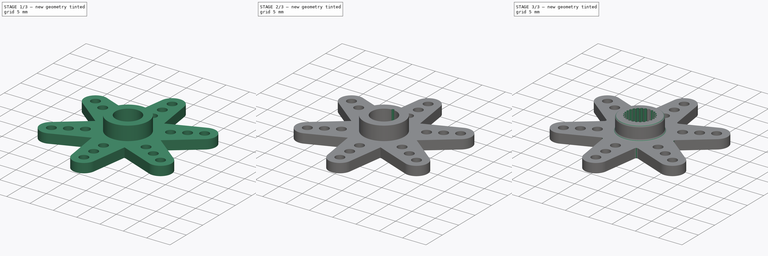
[diagram: build sequence overview — one tinted view per stage of 3, left to right]
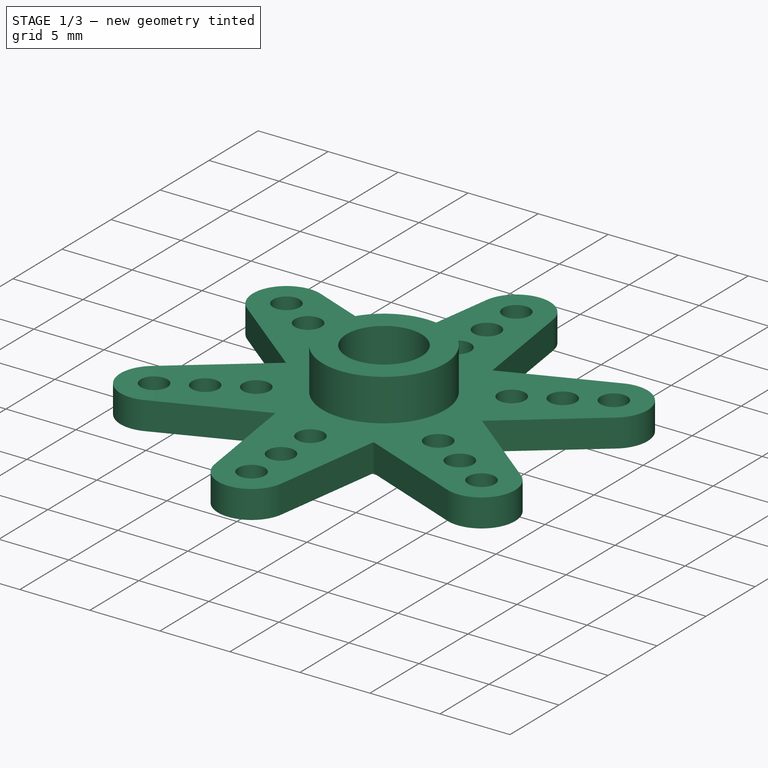
[diagram: stage 1 of 3 — iso view after this stage's code; geometry added in this stage tinted green]
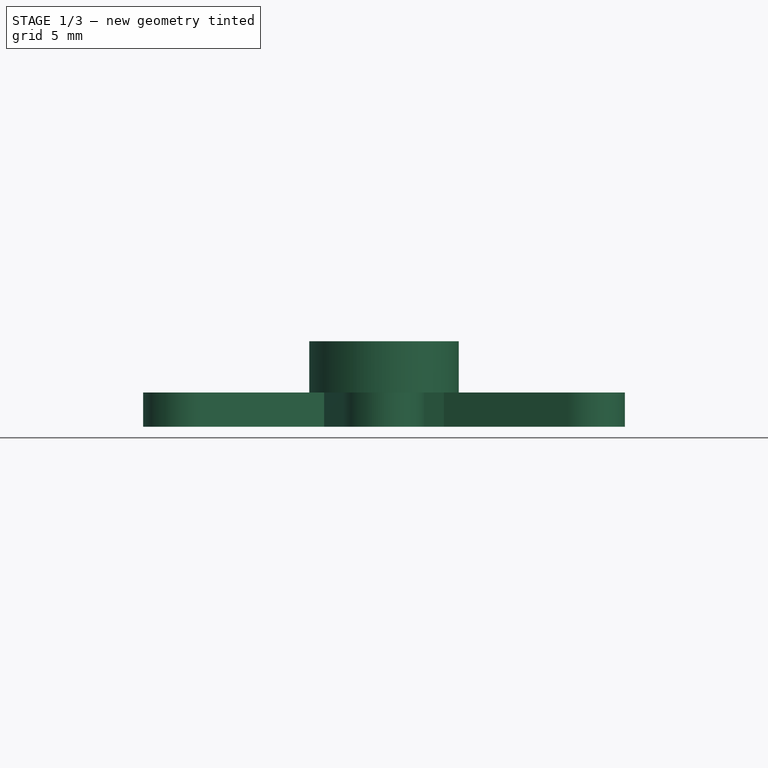
[diagram: stage 1 of 3 — front view after this stage's code; geometry added in this stage tinted green]
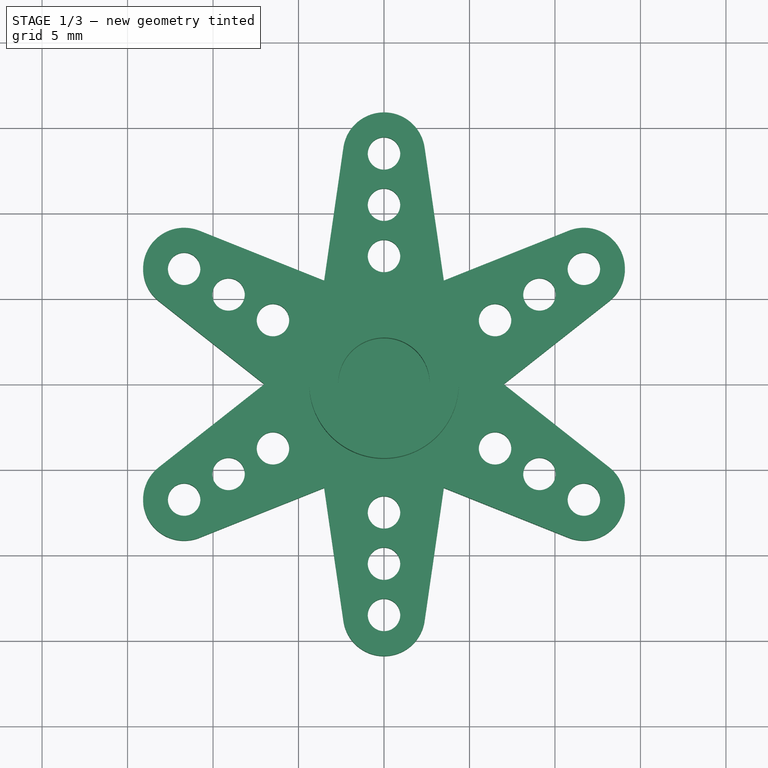
[diagram: stage 1 of 3 — top view after this stage's code; geometry added in this stage tinted green]
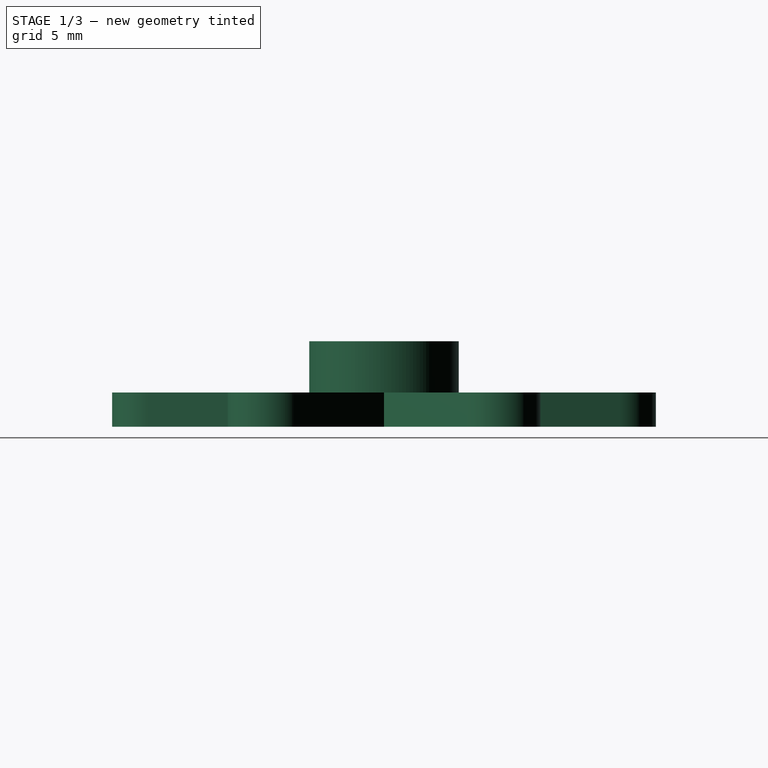
[diagram: stage 1 of 3 — right view after this stage's code; geometry added in this stage tinted green]
FCSTD DOCUMENT  (FreeCAD 0.18R4 (GitTag))
Label: Servohorn_6_B_Star
License: All rights reserved
LicenseURL: http://en.wikipedia.org/wiki/All_rights_reserved
objects: Sketcher::SketchObject×4, PartDesign::Pad×2, PartDesign::Pocket×2, PartDesign::PolarPattern×1, PartDesign::Fillet×1, PartDesign::Body×1, App::Part×1
note: 15 computed .brp shape members not serialized (recipe doc carries the construction recipe); baked Part::Feature solids carry a one-line shape summary decoded from their .brp

FEATURE [Sketcher::SketchObject] Sketch194
  MapMode = 5
  Support = -> [XY_Plane039]
  sketch-geometry (71):
    g0: LineSegment [constr] StartX=-3.5 StartY=6.06218 StartZ=0 EndX=-7 EndY=9e-16 EndZ=0
    g1: LineSegment [constr] StartX=-7 StartY=9e-16 StartZ=0 EndX=-3.5 EndY=-6.06218 EndZ=0
    g2: LineSegment [constr] StartX=-3.5 StartY=-6.06218 StartZ=0 EndX=3.5 EndY=-6.06218 EndZ=0
    g3: LineSegment [constr] StartX=3.5 StartY=-6.06218 StartZ=0 EndX=7 EndY=9e-16 EndZ=0
    g4: LineSegment [constr] StartX=7 StartY=9e-16 StartZ=0 EndX=3.5 EndY=6.06218 EndZ=0
    g5: LineSegment [constr] StartX=3.5 StartY=6.06218 StartZ=0 EndX=-3.5 EndY=6.06218 EndZ=0
    g6: Circle [constr] CenterX=0 CenterY=0 CenterZ=0 NormalX=0 NormalY=0 NormalZ=1 AngleXU=0 Radius=7
    g7: LineSegment [constr] StartX=0 StartY=7 StartZ=0 EndX=-6.06218 EndY=3.5 EndZ=0
    g8: LineSegment [constr] StartX=-6.06218 StartY=3.5 StartZ=0 EndX=-6.06218 EndY=-3.5 EndZ=0
    g9: LineSegment [constr] StartX=-6.06218 StartY=-3.5 StartZ=0 EndX=0 EndY=-7 EndZ=0
    g10: LineSegment [constr] StartX=0 StartY=-7 StartZ=0 EndX=6.06218 EndY=-3.5 EndZ=0
    g11: LineSegment [constr] StartX=6.06218 StartY=-3.5 StartZ=0 EndX=6.06218 EndY=3.5 EndZ=0
    g12: LineSegment [constr] StartX=6.06218 StartY=3.5 StartZ=0 EndX=0 EndY=7 EndZ=0
    g13: Circle [constr] CenterX=0 CenterY=0 CenterZ=0 NormalX=0 NormalY=0 NormalZ=1 AngleXU=0 Radius=7
    g14: LineSegment [constr] StartX=0 StartY=10.5 StartZ=0 EndX=-9.09327 EndY=5.25 EndZ=0
    g15: LineSegment [constr] StartX=-9.09327 StartY=5.25 StartZ=0 EndX=-9.09327 EndY=-5.25 EndZ=0
    g16: LineSegment [constr] StartX=-9.09327 StartY=-5.25 StartZ=0 EndX=0 EndY=-10.5 EndZ=0
    g17: LineSegment [constr] StartX=0 StartY=-10.5 StartZ=0 EndX=9.09327 EndY=-5.25 EndZ=0
    g18: LineSegment [constr] StartX=9.09327 StartY=-5.25 StartZ=0 EndX=9.09327 EndY=5.25 EndZ=0
    g19: LineSegment [constr] StartX=9.09327 StartY=5.25 StartZ=0 EndX=0 EndY=10.5 EndZ=0
    g20: Circle [constr] CenterX=0 CenterY=0 CenterZ=0 NormalX=0 NormalY=0 NormalZ=1 AngleXU=0 Radius=10.5
    g21: LineSegment [constr] StartX=0 StartY=13.5 StartZ=0 EndX=-11.6913 EndY=6.75 EndZ=0
    g22: LineSegment [constr] StartX=-11.6913 StartY=6.75 StartZ=0 EndX=-11.6913 EndY=-6.75 EndZ=0
    g23: LineSegment [constr] StartX=-11.6913 StartY=-6.75 StartZ=0 EndX=-1.8e-15 EndY=-13.5 EndZ=0
    g24: LineSegment [constr] StartX=-1e-15 StartY=-13.5 StartZ=0 EndX=11.6913 EndY=-6.75 EndZ=0
    g25: LineSegment [constr] StartX=11.6913 StartY=-6.75 StartZ=0 EndX=11.6913 EndY=6.75 EndZ=0
    g26: LineSegment [constr] StartX=11.6913 StartY=6.75 StartZ=0 EndX=0 EndY=13.5 EndZ=0
    g27: Circle [constr] CenterX=0 CenterY=0 CenterZ=0 NormalX=0 NormalY=0 NormalZ=1 AngleXU=0 Radius=13.5
    g28: ArcOfCircle CenterX=0 CenterY=13.5 CenterZ=0 NormalX=0 NormalY=0 NormalZ=1 AngleXU=0 Radius=2.4 StartAngle=0.143545 EndAngle=2.99805
    g29: ArcOfCircle CenterX=11.6913 CenterY=6.75 CenterZ=0 NormalX=0 NormalY=0 NormalZ=1 AngleXU=0 Radius=2.4 StartAngle=5.37953 EndAngle=8.23403
    g30: ArcOfCircle CenterX=11.6913 CenterY=-6.75 CenterZ=0 NormalX=0 NormalY=0 NormalZ=1 AngleXU=0 Radius=2.4 StartAngle=4.33234 EndAngle=7.18684
    g31: ArcOfCircle CenterX=-1e-15 CenterY=-13.5 CenterZ=0 NormalX=0 NormalY=0 NormalZ=1 AngleXU=0 Radius=2.4 StartAngle=3.28514 EndAngle=6.13964
    g32: ArcOfCircle CenterX=-11.6913 CenterY=-6.75 CenterZ=0 NormalX=0 NormalY=0 NormalZ=1 AngleXU=0 Radius=2.4 StartAngle=2.23794 EndAngle=5.09244
    g33: ArcOfCircle CenterX=-11.6913 CenterY=6.75 CenterZ=0 NormalX=0 NormalY=0 NormalZ=1 AngleXU=0 Radius=2.4 StartAngle=1.19074 EndAngle=4.04524
    g34: LineSegment StartX=-10.801 StartY=8.97875 StartZ=0 EndX=-3.5 EndY=6.06218 EndZ=0
    g35: LineSegment StartX=-3.5 StartY=6.06218 StartZ=0 EndX=-2.37532 EndY=13.8433 EndZ=0
    g36: LineSegment StartX=2.37532 StartY=13.8433 StartZ=0 EndX=3.5 EndY=6.06218 EndZ=0
    g37: LineSegment StartX=3.5 StartY=6.06218 StartZ=0 EndX=10.801 EndY=8.97875 EndZ=0
    g38: LineSegment StartX=13.1763 StartY=4.86458 StartZ=0 EndX=7 EndY=9e-16 EndZ=0
    g39: LineSegment StartX=7 StartY=9e-16 StartZ=0 EndX=13.1763 EndY=-4.86458 EndZ=0
    g40: LineSegment StartX=10.801 StartY=-8.97875 StartZ=0 EndX=3.5 EndY=-6.06218 EndZ=0
    g41: LineSegment StartX=3.5 StartY=-6.06218 StartZ=0 EndX=2.37532 EndY=-13.8433 EndZ=0
    g42: LineSegment StartX=-2.37532 StartY=-13.8433 StartZ=0 EndX=-3.5 EndY=-6.06218 EndZ=0
    g43: LineSegment StartX=-3.5 StartY=-6.06218 StartZ=0 EndX=-10.801 EndY=-8.97875 EndZ=0
    g44: LineSegment StartX=-13.1763 StartY=-4.86458 StartZ=0 EndX=-7 EndY=9e-16 EndZ=0
    g45: LineSegment StartX=-7 StartY=9e-16 StartZ=0 EndX=-13.1763 EndY=4.86458 EndZ=0
    g46: Circle CenterX=-11.6913 CenterY=6.75 CenterZ=0 NormalX=0 NormalY=0 NormalZ=1 AngleXU=0 Radius=0.95
    g47: Circle CenterX=-9.09327 CenterY=5.25 CenterZ=0 NormalX=0 NormalY=0 NormalZ=1 AngleXU=0 Radius=0.95
    g48: Circle CenterX=0 CenterY=13.5 CenterZ=0 NormalX=0 NormalY=0 NormalZ=1 AngleXU=0 Radius=0.95
    g49: Circle CenterX=0 CenterY=10.5 CenterZ=0 NormalX=0 NormalY=0 NormalZ=1 AngleXU=0 Radius=0.95
    g50: Circle CenterX=11.6913 CenterY=6.75 CenterZ=0 NormalX=0 NormalY=0 NormalZ=1 AngleXU=0 Radius=0.95
    g51: Circle CenterX=9.09327 CenterY=5.25 CenterZ=0 NormalX=0 NormalY=0 NormalZ=1 AngleXU=0 Radius=0.95
    g52: Circle CenterX=11.6913 CenterY=-6.75 CenterZ=0 NormalX=0 NormalY=0 NormalZ=1 AngleXU=0 Radius=0.95
    g53: Circle CenterX=9.09327 CenterY=-5.25 CenterZ=0 NormalX=0 NormalY=0 NormalZ=1 AngleXU=0 Radius=0.95
    g54: Circle CenterX=0 CenterY=-10.5 CenterZ=0 NormalX=0 NormalY=0 NormalZ=1 AngleXU=0 Radius=0.95
    g55: Circle CenterX=-1e-15 CenterY=-13.5 CenterZ=0 NormalX=0 NormalY=0 NormalZ=1 AngleXU=0 Radius=0.95
    g56: Circle CenterX=-11.6913 CenterY=-6.75 CenterZ=0 NormalX=0 NormalY=0 NormalZ=1 AngleXU=0 Radius=0.95
    g57: Circle CenterX=-9.09327 CenterY=-5.25 CenterZ=0 NormalX=0 NormalY=0 NormalZ=1 AngleXU=0 Radius=0.95
    g58: LineSegment [constr] StartX=0 StartY=7.5 StartZ=0 EndX=-6.49519 EndY=3.75 EndZ=0
    g59: LineSegment [constr] StartX=-6.49519 StartY=3.75 StartZ=0 EndX=-6.49519 EndY=-3.75 EndZ=0
    g60: LineSegment [constr] StartX=-6.49519 StartY=-3.75 StartZ=0 EndX=0 EndY=-7.5 EndZ=0
    g61: LineSegment [constr] StartX=0 StartY=-7.5 StartZ=0 EndX=6.49519 EndY=-3.75 EndZ=0
    g62: LineSegment [constr] StartX=6.49519 StartY=-3.75 StartZ=0 EndX=6.49519 EndY=3.75 EndZ=0
    g63: LineSegment [constr] StartX=6.49519 StartY=3.75 StartZ=0 EndX=0 EndY=7.5 EndZ=0
    g64: Circle [constr] CenterX=0 CenterY=0 CenterZ=0 NormalX=0 NormalY=0 NormalZ=1 AngleXU=0 Radius=7.5
    g65: Circle CenterX=6.49519 CenterY=3.75 CenterZ=0 NormalX=0 NormalY=0 NormalZ=1 AngleXU=0 Radius=0.95
    g66: Circle CenterX=0 CenterY=7.5 CenterZ=0 NormalX=0 NormalY=0 NormalZ=1 AngleXU=0 Radius=0.95
    g67: Circle CenterX=-6.49519 CenterY=3.75 CenterZ=0 NormalX=0 NormalY=0 NormalZ=1 AngleXU=0 Radius=0.95
    g68: Circle CenterX=-6.49519 CenterY=-3.75 CenterZ=0 NormalX=0 NormalY=0 NormalZ=1 AngleXU=0 Radius=0.95
    g69: Circle CenterX=0 CenterY=-7.5 CenterZ=0 NormalX=0 NormalY=0 NormalZ=1 AngleXU=0 Radius=0.95
    g70: Circle CenterX=6.49519 CenterY=-3.75 CenterZ=0 NormalX=0 NormalY=0 NormalZ=1 AngleXU=0 Radius=0.95
  constraints (152):
    c: Coincident(g0,g1)
    c: Coincident(g1,g2)
    c: Coincident(g2,g3)
    c: Coincident(g3,g4)
    c: Coincident(g4,g5)
    c: Coincident(g5,g0)
    c: Equal(g0, g1-g5) x5
    c: PointOnObject(g0,g6)
    c: PointOnObject(g1,g6)
    c: PointOnObject(g2,g6)
    c: PointOnObject(g3,g6)
    c: PointOnObject(g4,g6)
    c: PointOnObject(g5,g6)
    c: Coincident(g6,g-1)
    c: Coincident(g7,g8)
    c: Coincident(g8,g9)
    c: Coincident(g9,g10)
    c: Coincident(g10,g11)
    c: Coincident(g11,g12)
    c: Coincident(g12,g7)
    c: Equal(g7, g8-g12) x5
    c: PointOnObject(g7,g13)
    c: PointOnObject(g8,g13)
    c: PointOnObject(g10,g13)
    c: PointOnObject(g11,g13)
    c: PointOnObject(g12,g13)
    c: Coincident(g13,g-1)
    c: PointOnObject(g12,g6)
    c: PointOnObject(g7,g-2)
    c: Horizontal(g5)
    c: Radius(g6) = 7
    c: Coincident(g14,g15)
    c: Coincident(g15,g16)
    c: Coincident(g16,g17)
    c: Coincident(g17,g18)
    c: Coincident(g18,g19)
    c: Coincident(g19,g14)
    c: Equal(g14, g15-g19) x5
    c: PointOnObject(g14,g20)
    c: PointOnObject(g15,g20)
    c: PointOnObject(g16,g20)
    c: PointOnObject(g17,g20)
    c: PointOnObject(g18,g20)
    c: PointOnObject(g19,g20)
    c: Coincident(g20,g-1)
    c: PointOnObject(g19,g-2)
    c: Radius(g20) = 10.5
    c: Coincident(g21,g22)
    c: Coincident(g22,g23)
    c: Coincident(g23,g24)
    c: Coincident(g24,g25)
    c: Coincident(g25,g26)
    c: Coincident(g26,g21)
    c: Equal(g21, g22-g26) x5
    c: PointOnObject(g21,g27)
    c: PointOnObject(g22,g27)
    c: PointOnObject(g23,g27)
    c: PointOnObject(g24,g27)
    c: PointOnObject(g25,g27)
    c: PointOnObject(g26,g27)
    c: Coincident(g27,g-1)
    c: PointOnObject(g26,g-2)
    c: Radius(g27) = 13.5
    c: Coincident(g28,g21)
    c: Coincident(g29,g25)
    c: Coincident(g30,g24)
    c: Coincident(g31,g23)
    c: Coincident(g32,g22)
    c: Coincident(g33,g21)
    c: Coincident(g34,g0)
    c: Coincident(g35,g34)
    c: Coincident(g36,g4)
    c: Coincident(g37,g36)
    c: Coincident(g38,g3)
    c: Coincident(g39,g38)
    c: Coincident(g40,g2)
    c: Coincident(g41,g40)
    c: Coincident(g42,g1)
    c: Coincident(g43,g42)
    c: Coincident(g44,g0)
    c: Coincident(g45,g44)
    c: Tangent(g35,g28) = 1.5708
    c: Tangent(g36,g28) = 1.5708
    c: Tangent(g37,g29) = 1.5708
    c: Tangent(g38,g29) = 1.5708
    c: Tangent(g39,g30) = 1.5708
    c: Tangent(g40,g30) = 1.5708
    c: Tangent(g41,g31) = 1.5708
    c: Tangent(g42,g31) = 1.5708
    c: Tangent(g43,g32) = 1.5708
    c: Tangent(g44,g32) = 1.5708
    c: Tangent(g45,g33) = 1.5708
    c: Tangent(g34,g33) = 1.5708
    c: Radius(g29) = 2.4
    c: Equal(g29,g28)
    c: Equal(g28,g33)
    c: Equal(g33,g32)
    c: Equal(g32,g31)
    c: Equal(g31,g30)
    c: Coincident(g46,g33)
    c: Coincident(g47,g14)
    c: Coincident(g48,g28)
    c: Coincident(g49,g14)
    c: Coincident(g50,g29)
    c: Coincident(g51,g18)
    c: Coincident(g52,g30)
    c: Coincident(g53,g17)
    c: Coincident(g54,g16)
    c: Coincident(g55,g31)
    c: Coincident(g56,g32)
    c: Coincident(g57,g15)
    c: Equal(g56,g57)
    c: Equal(g54,g55)
    c: Equal(g55,g52)
    c: Equal(g52,g53)
    c: Equal(g51,g50)
    c: Equal(g49,g48)
    c: Equal(g48,g46)
    c: Equal(g46,g47)
    c: Radius(g52) = 0.95
    c: Coincident(g58,g59)
    c: Coincident(g59,g60)
    c: Coincident(g60,g61)
    c: Coincident(g61,g62)
    c: Coincident(g62,g63)
    c: Coincident(g63,g58)
    c: Equal(g58, g59-g63) x5
    c: PointOnObject(g58,g64)
    c: PointOnObject(g59,g64)
    c: PointOnObject(g60,g64)
    c: PointOnObject(g61,g64)
    c: PointOnObject(g62,g64)
    c: PointOnObject(g63,g64)
    c: Coincident(g64,g-1)
    c: PointOnObject(g63,g-2)
    c: Radius(g64) = 7.5
    c: Coincident(g65,g62)
    c: Coincident(g66,g58)
    c: Coincident(g67,g58)
    c: Coincident(g68,g59)
    c: Coincident(g69,g60)
    c: Coincident(g70,g61)
    c: Equal(g69,g70)
    c: Equal(g70,g65)
    c: Equal(g65,g66)
    c: Equal(g66,g67)
    c: Equal(g67,g68)
    c: Equal(g68,g52)
    c: Equal(g65,g51)
    c: Equal(g57,g68)
    c: Equal(g49,g66)
    c: PointOnObject(g9,g6)
FEATURE [PartDesign::Pad] Pad056
  Length = 2
  Length2 = 100
  Profile = -> Sketch194
  Type = 0
FEATURE [Sketcher::SketchObject] Sketch195
  MapMode = 5
  Placement = pos=(0,0,2) rot=(0,0,1;0rad)
  Support = -> [Pad056]
  sketch-geometry (2):
    g0: Circle CenterX=0 CenterY=0 CenterZ=0 NormalX=0 NormalY=0 NormalZ=1 AngleXU=0 Radius=4.375
    g1: Circle CenterX=0 CenterY=0 CenterZ=0 NormalX=0 NormalY=0 NormalZ=1 AngleXU=0 Radius=2.675
  constraints (4):
    c: Coincident(g0,g-1)
    c: Coincident(g1,g0)
    c: Radius(g1) = 2.675
    c: Radius(g0) = 4.375
FEATURE [PartDesign::Pad] Pad
  BaseFeature = -> Pad056
  Length = 3
  Length2 = 100
  Profile = -> Sketch195
  Type = 0
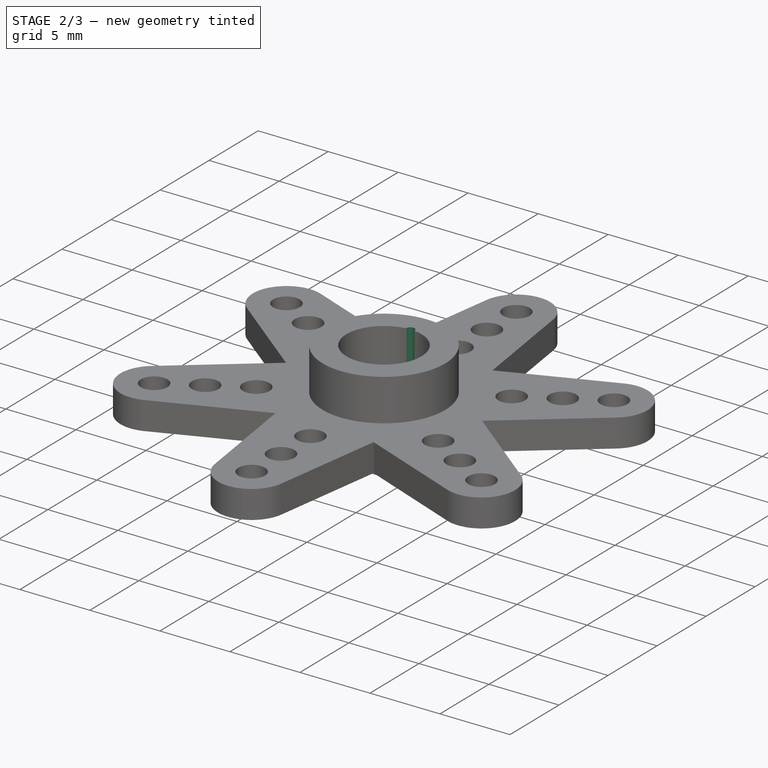
[diagram: stage 2 of 3 — iso view after this stage's code; geometry added in this stage tinted green]
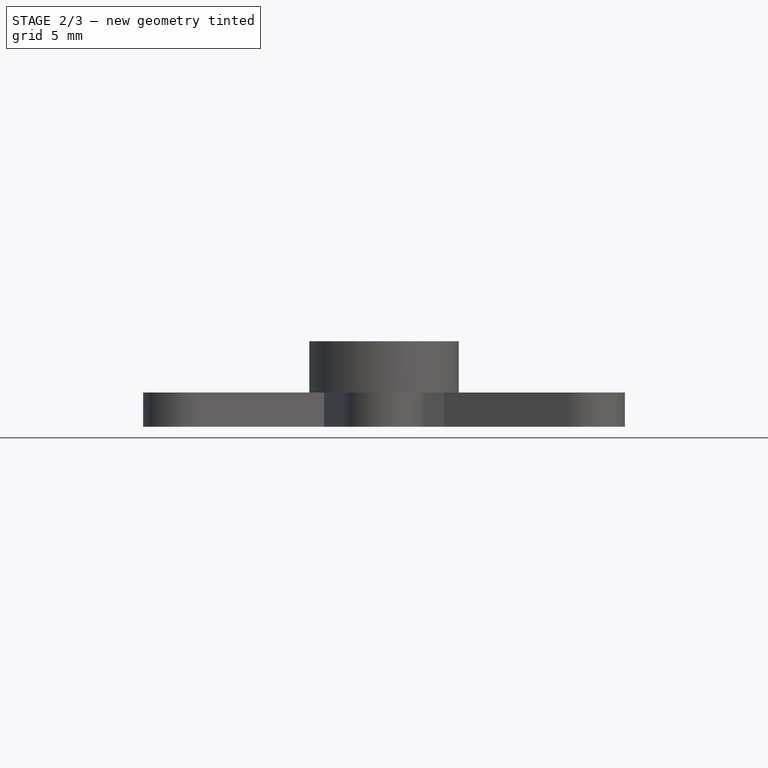
[diagram: stage 2 of 3 — front view after this stage's code; geometry added in this stage tinted green]
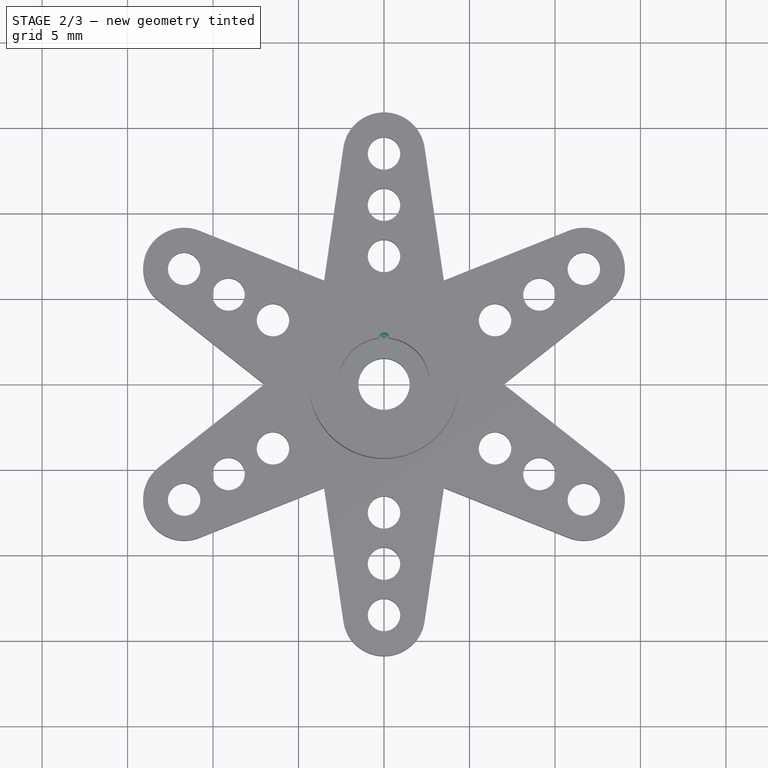
[diagram: stage 2 of 3 — top view after this stage's code; geometry added in this stage tinted green]
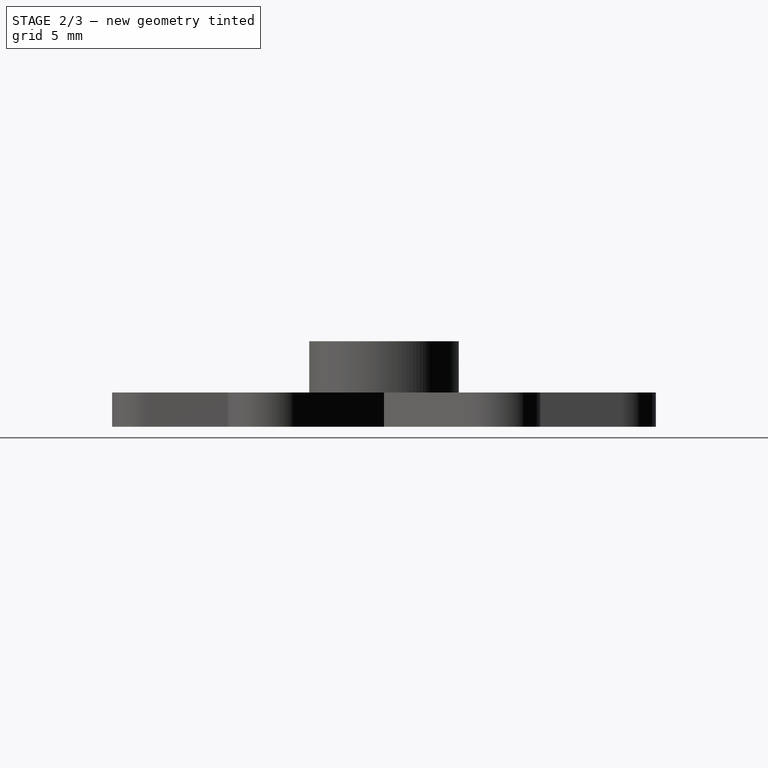
[diagram: stage 2 of 3 — right view after this stage's code; geometry added in this stage tinted green]
FEATURE [Sketcher::SketchObject] Sketch197
  MapMode = 5
  Placement = pos=(0,0,2) rot=(0,0,1;0rad)
  Support = -> [Pad]
  sketch-geometry (1):
    g0: Circle CenterX=0 CenterY=0 CenterZ=0 NormalX=0 NormalY=0 NormalZ=1 AngleXU=0 Radius=1.5
  constraints (2):
    c: Coincident(g0,g-1)
    c: Radius(g0) = 1.5
FEATURE [PartDesign::Pocket] Pocket
  BaseFeature = -> Pad
  Length = 5
  Length2 = 100
  Profile = -> Sketch197
  Type = 0
FEATURE [Sketcher::SketchObject] Sketch
  ExternalGeometry = -> [Pocket]
  MapMode = 5
  Placement = pos=(0,0,5) rot=(0,0,1;0rad)
  Support = -> [Pocket]
  sketch-geometry (4):
    g0: ArcOfCircle CenterX=0 CenterY=2.675 CenterZ=0 NormalX=0 NormalY=0 NormalZ=1 AngleXU=0 Radius=0.3 StartAngle=0.0425571 EndAngle=3.09904
    g1: ArcOfCircle CenterX=0.334697 CenterY=2.68925 CenterZ=0 NormalX=0 NormalY=0 NormalZ=1 AngleXU=0 Radius=0.035 StartAngle=3.18415 EndAngle=4.58853
    g2: ArcOfCircle CenterX=-0.334697 CenterY=2.68925 CenterZ=0 NormalX=0 NormalY=0 NormalZ=1 AngleXU=0 Radius=0.035 StartAngle=4.83624 EndAngle=6.24063
    g3: ArcOfCircle CenterX=0 CenterY=0 CenterZ=0 NormalX=0 NormalY=0 NormalZ=1 AngleXU=0 Radius=2.675 StartAngle=1.44698 EndAngle=1.69462
  constraints (13):
    c: Radius(g-3) = 2.675
    c: PointOnObject(g0,g-3)
    c: PointOnObject(g1,g-3)
    c: Tangent(g1,g0) = 1.5708
    c: Tangent(g2,g0) = 1.5708
    c: Symmetric(g0,g0,g-2)
    c: Radius(g0) = 0.3
    c: Radius(g1) = 0.035
    c: Coincident(g3,g1)
    c: Coincident(g3,g-1)
    c: Symmetric(g1,g2,g-2)
    c: Coincident(g3,g2)
    c: Tangent(g2,g-3)
FEATURE [PartDesign::Pocket] Pocket001
  BaseFeature = -> Pocket
  Length = 3
  Length2 = 100
  Profile = -> Sketch
  Type = 0
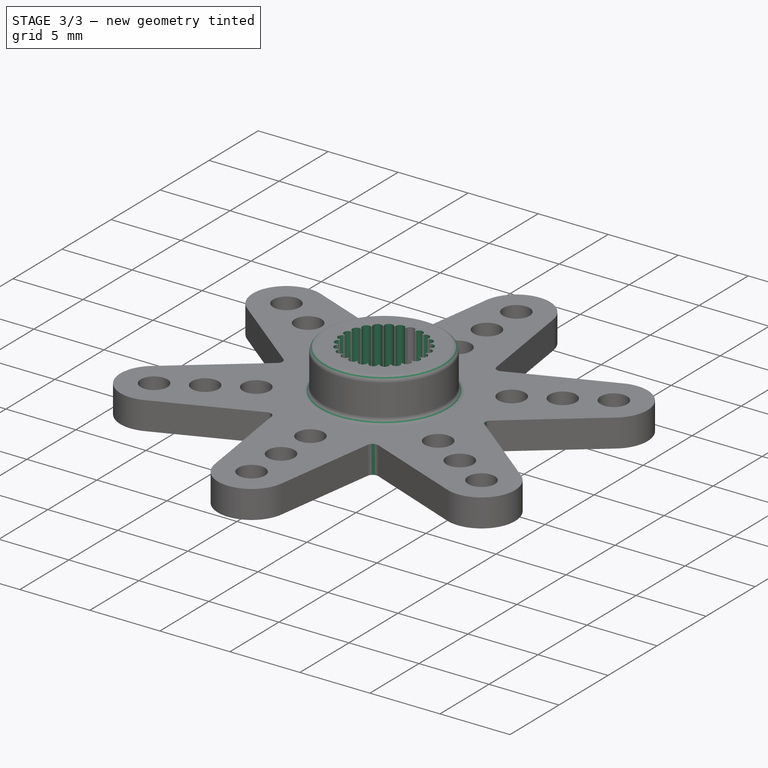
[diagram: stage 3 of 3 — iso view after this stage's code; geometry added in this stage tinted green]
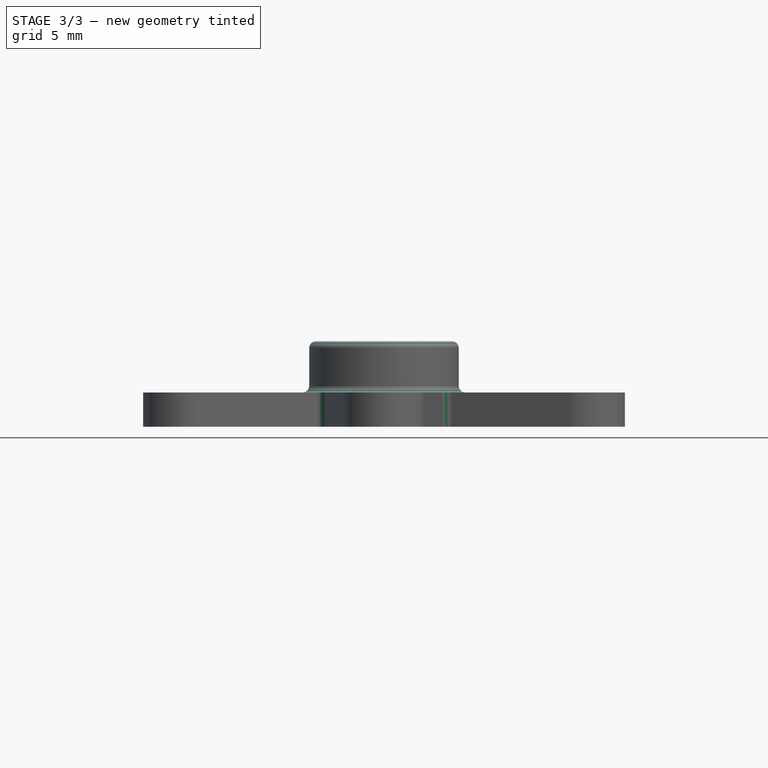
[diagram: stage 3 of 3 — front view after this stage's code; geometry added in this stage tinted green]
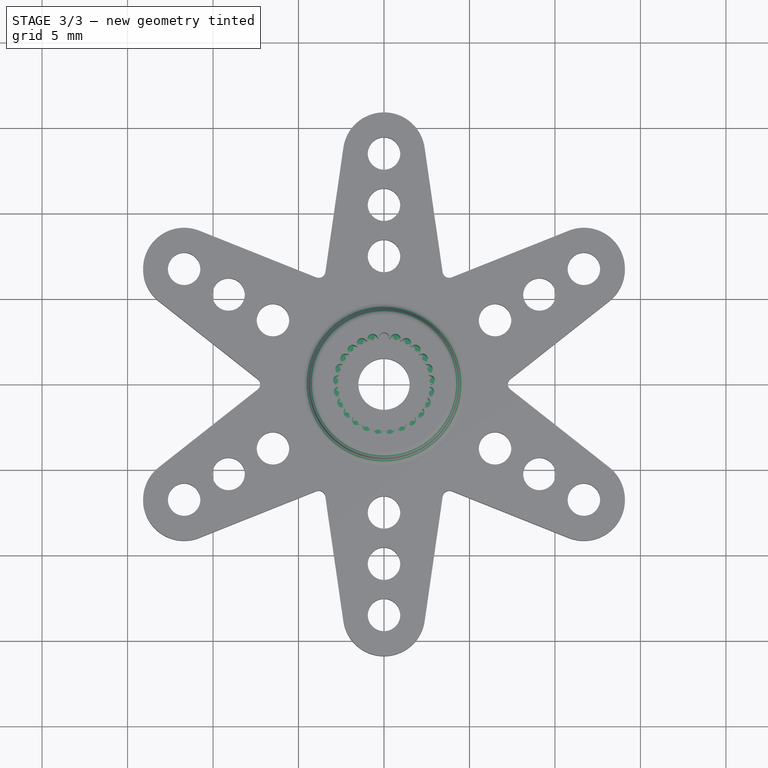
[diagram: stage 3 of 3 — top view after this stage's code; geometry added in this stage tinted green]
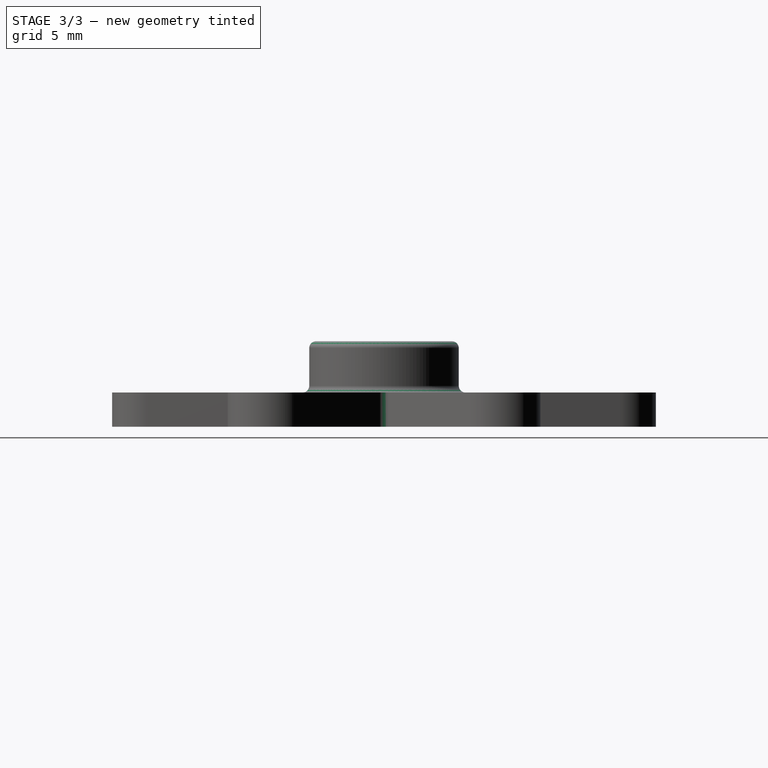
[diagram: stage 3 of 3 — right view after this stage's code; geometry added in this stage tinted green]
FEATURE [PartDesign::PolarPattern] PolarPattern
  Angle = 360
  Axis = -> Sketch [N_Axis]
  BaseFeature = -> Pocket001
  Occurrences = 25
  Originals = -> [Pocket001]
FEATURE [PartDesign::Fillet] Fillet
  Base = -> PolarPattern [Edge83,Edge89,Edge90,Edge84,Edge8,Edge5,Edge114,Edge64]
  BaseFeature = -> PolarPattern
  Radius = 0.4
FEATURE [PartDesign::Body] Body026  label="Servohorn 6 B-Star 25T"
  Group = -> [Sketch194,Pad056,Sketch195,Sketch197,Pad,Pocket,Sketch,Pocket001,PolarPattern,Fillet]
  Origin = -> Origin039
  Tip = -> Fillet
FEATURE [App::Part] Part006  label="Servohorn"
  Group = -> [Body026]
  Origin = -> Origin037
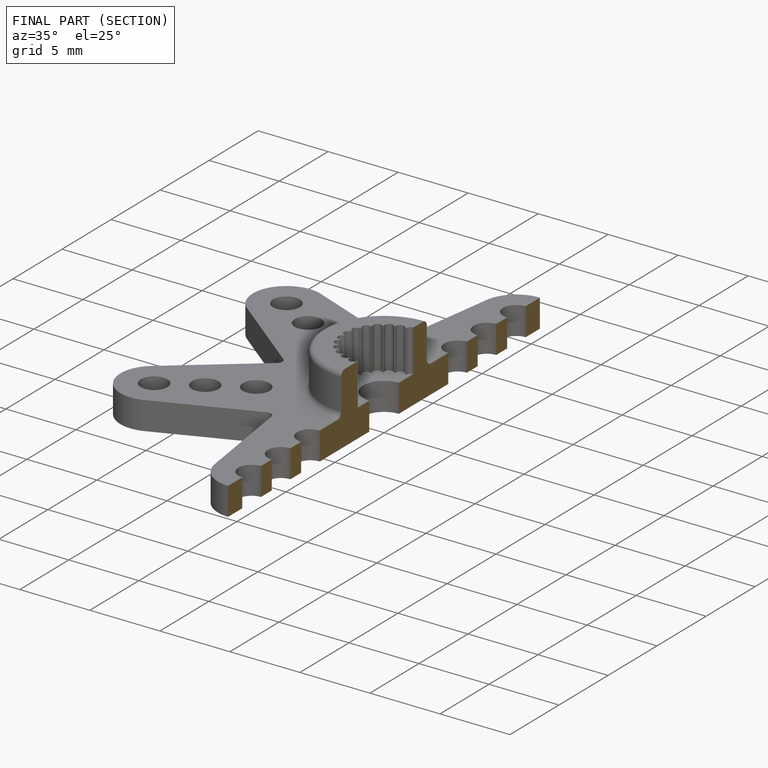
[diagram: finished part — half-section view (interior)]
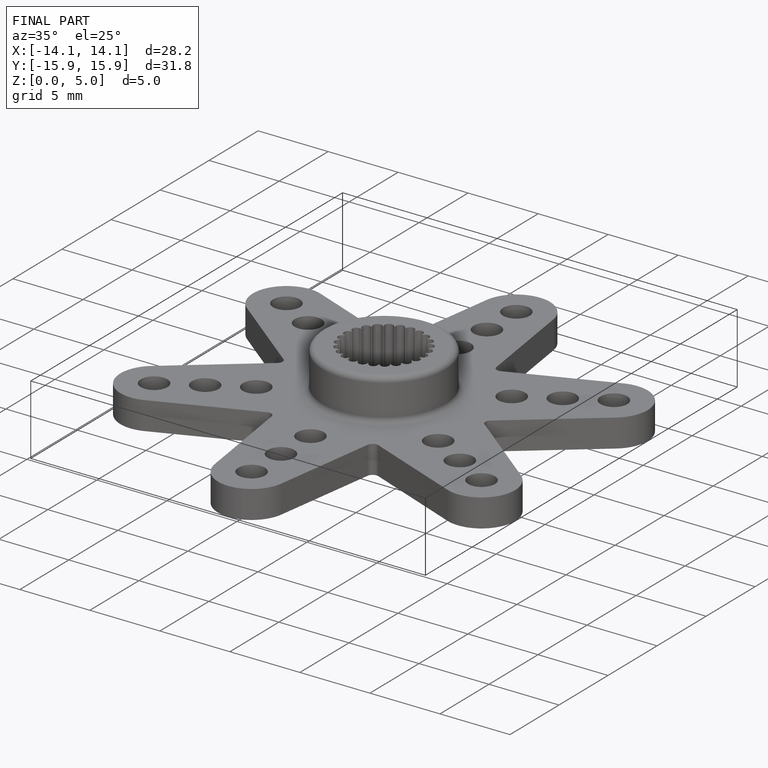
[diagram: finished part — iso view with bounding-box wireframe]
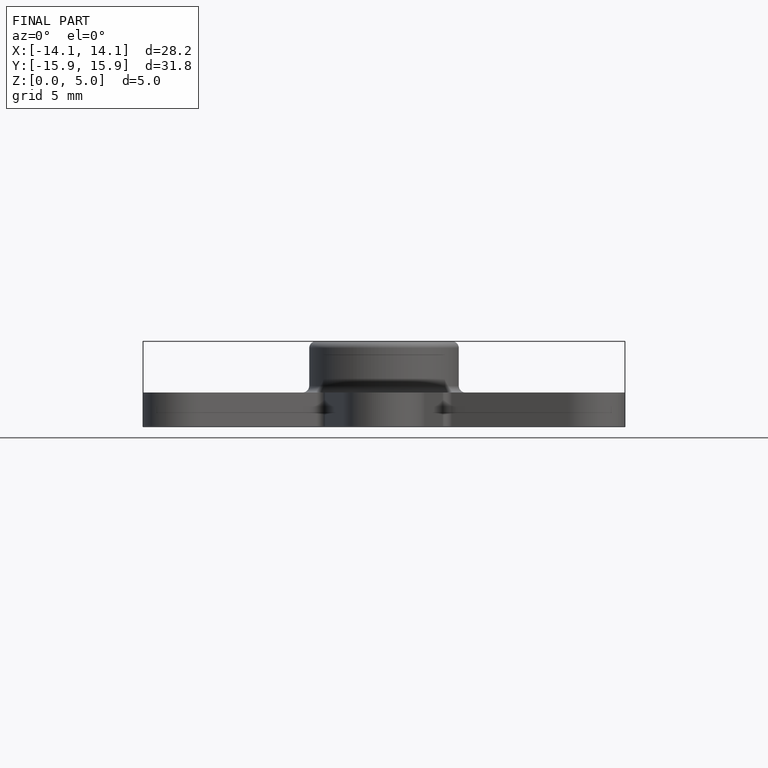
[diagram: finished part — front view with bounding-box wireframe]
